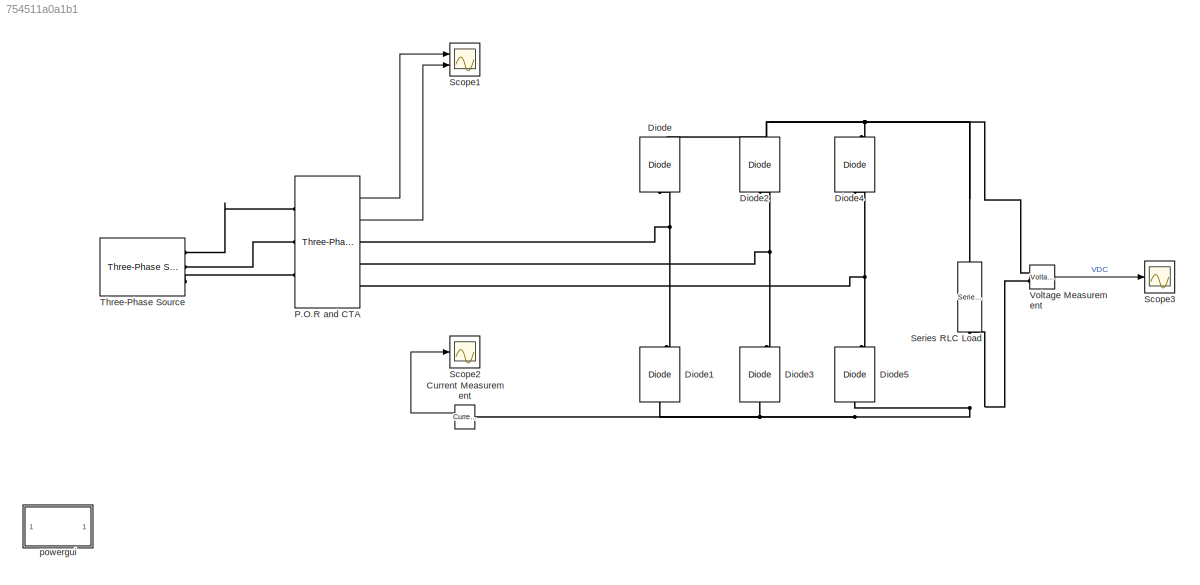
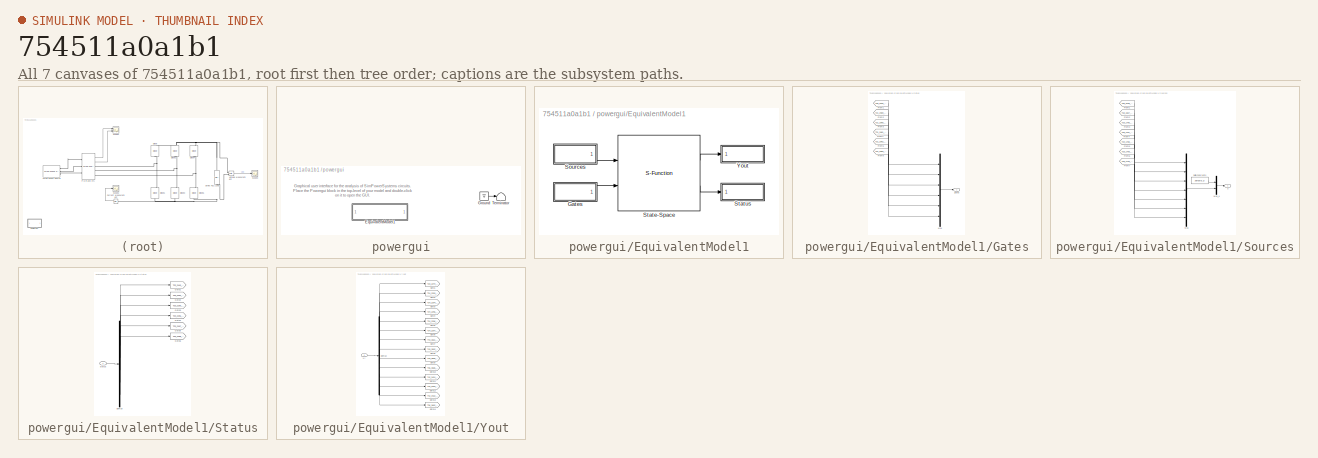
[diagram: thumbnail index - all 7 canvases of the model, root first then tree order]
MODEL slx_754511a0a1b1
KIND model
BLOCK [Reference] Current Measurement  REF=powerlib/Measurements/Current Measurement
  OutputType = Complex
  PSBequivalent = 0
  PhasorSimulation = off
  Ports = [0, 1, 0, 0, 0, 1, 1]
  SourceBlock = powerlib/Measurements/Current Measurement
  SourceType = Current Measurement
  UserDataPersistent = on
BLOCK [Reference] Diode  REF=powerlib/Power
Electronics/Diode
  Cs = 250e-9
  IC = 0
  Lon = 0
  Measurements = on
  Ports = [0, 1, 0, 0, 0, 1, 1]
  Ron = 0.001
  Rs = 500
  SourceBlock = powerlib/Power\nElectronics/Diode
  SourceType = Diode
  UseSnubber = off
  Vf = 0.8
BLOCK [Reference] Diode1  REF=powerlib/Power
Electronics/Diode
  Cs = 250e-9
  IC = 0
  Lon = 0
  Measurements = on
  Ports = [0, 1, 0, 0, 0, 1, 1]
  Ron = 0.001
  Rs = 500
  SourceBlock = powerlib/Power\nElectronics/Diode
  SourceType = Diode
  UseSnubber = off
  Vf = 0.8
BLOCK [Reference] Diode2  REF=powerlib/Power
Electronics/Diode
  Cs = 250e-9
  IC = 0
  Lon = 0
  Measurements = on
  Ports = [0, 1, 0, 0, 0, 1, 1]
  Ron = 0.001
  Rs = 500
  SourceBlock = powerlib/Power\nElectronics/Diode
  SourceType = Diode
  UseSnubber = off
  Vf = 0.8
BLOCK [Reference] Diode3  REF=powerlib/Power
Electronics/Diode
  Cs = 250e-9
  IC = 0
  Lon = 0
  Measurements = on
  Ports = [0, 1, 0, 0, 0, 1, 1]
  Ron = 0.001
  Rs = 500
  SourceBlock = powerlib/Power\nElectronics/Diode
  SourceType = Diode
  UseSnubber = off
  Vf = 0.8
BLOCK [Reference] Diode4  REF=powerlib/Power
Electronics/Diode
  Cs = 250e-9
  IC = 0
  Lon = 0
  Measurements = on
  Ports = [0, 1, 0, 0, 0, 1, 1]
  Ron = 0.001
  Rs = 500
  SourceBlock = powerlib/Power\nElectronics/Diode
  SourceType = Diode
  UseSnubber = off
  Vf = 0.8
BLOCK [Reference] Diode5  REF=powerlib/Power
Electronics/Diode
  Cs = 250e-9
  IC = 0
  Lon = 0
  Measurements = on
  Ports = [0, 1, 0, 0, 0, 1, 1]
  Ron = 0.001
  Rs = 500
  SourceBlock = powerlib/Power\nElectronics/Diode
  SourceType = Diode
  UseSnubber = off
  Vf = 0.8
BLOCK [Reference] P.O.R  and CTA  REF=powerlib/Measurements/Three-Phase
V-I Measurement
  CurrentMeasurement = yes
  Ipu = off
  LabelI = Iabc
  LabelV = Vabc
  OutputType = Complex
  PSBequivalent = 0
  Pbase = 100e6
  PhasorSimulation = off
  Ports = [0, 2, 0, 0, 0, 3, 3]
  SetLabelI = off
  SetLabelV = off
  SourceBlock = powerlib/Measurements/Three-Phase\nV-I Measurement
  SourceType = Three-Phase VI Measurement
  Vbase = 500e3
  VoltageMeasurement = phase-to-phase
  Vpu = off
  VpuLL = off
BLOCK [Scope] Scope1
  DataFormat = StructureWithTime
  Decimation = 100
  Floating = off
  LimitDataPoints = off
  NumInputPorts = 2
  Ports = [2]
  SampleTime = 1e-3
  ShowLegends = off
  TimeRange = 0.005
  YMax = 200~5
  YMin = -200~-5
  ZoomMode = xonly
BLOCK [Scope] Scope2
  DataFormat = StructureWithTime
  Decimation = 100
  Floating = off
  LimitDataPoints = off
  NumInputPorts = 1
  Ports = [1]
  SampleTime = 1e-3
  SaveName = ScopeData1
  ShowLegends = off
  TimeRange = 0.005
  YMax = 200
  YMin = -200
  ZoomMode = xonly
BLOCK [Scope] Scope3
  DataFormat = StructureWithTime
  Decimation = 100
  Floating = off
  LimitDataPoints = off
  NumInputPorts = 1
  Ports = [1]
  SampleTime = 1e-3
  SaveName = ScopeData2
  ShowLegends = off
  TimeRange = 0.005
  YMax = 200
  YMin = -200
  ZoomMode = xonly
BLOCK [Reference] Series RLC Load  REF=powerlib/Elements/Series RLC Load
  ActivePower = 200
  AttributesFormatString = \n
  CapacitivePower = 0
  InductivePower = 100
  InitialCurrent = 0
  InitialVoltage = 0
  LConnTagsString = a
  Measurements = None
  NominalFrequency = 400
  NominalVoltage = 280
  Ports = [0, 0, 0, 0, 0, 1, 1]
  RConnTagsString = __new0
  SetiL0 = off
  Setx0 = off
  SourceBlock = powerlib/Elements/Series RLC Load
  SourceType = Series RLC Load
BLOCK [Reference] Three-Phase Source  REF=powerlib/Electrical
Sources/Three-Phase Source
  BaseVoltage = 25e3
  BusType = swing
  Frequency = 400
  Inductance = 16.58e-3*1e-6
  InternalConnection = Yn
  PhaseAngle = 0
  Ports = [0, 0, 0, 0, 0, 1, 3]
  Pref = 0
  Qmax = inf
  Qmin = -inf
  Qref = 0
  Resistance = 0.8929e-6
  ShortCircuitLevel = 100e6
  SourceBlock = powerlib/Electrical\nSources/Three-Phase Source
  SourceType = Three-Phase Source
  SpecifyImpedance = off
  Voltage = 115*sqrt(3)
  XRratio = 7
BLOCK [Reference] Voltage Measurement  REF=powerlib/Measurements/Voltage Measurement
  OutputType = Complex
  PSBequivalent = 0
  PhasorSimulation = off
  Ports = [0, 1, 0, 0, 0, 2]
  SourceBlock = powerlib/Measurements/Voltage Measurement
  SourceType = Voltage Measurement
  UserDataPersistent = on
BLOCK [SubSystem] powergui
  AncestorBlock = powerlib/powergui
  CopyFcn = powergui( 'Copy_Callback' , gcb , 0 , [ ] );
  DeleteFcn = % see geck 675031 powergui( 'Copy_Callback' , gcb , 1 , [ ] );\n                                                              \npowergui( 'CloseButton_Callback' , gcb , [ ] , [ ] );
  InitFcn = powergui( 'InitFcn_Callback' , gcb , 0 , [ ] );
  ModelCloseFcn = powergui( 'CloseButton_Callback' , gcb , [ ] , [ ] );
  NameChangeFcn = powergui( 'NameChangeFcn_Callback' , gcb , 0 , [ ] );
  OpenFcn = powergui(gcb,'Open')
  Ports = []
  PreSaveFcn = powergui( 'PreSaveFcn_Callback' , gcb , [ ] , [ ] ); \npowergui( 'CloseButton_Callback' , gcb , [ ] , [ ] );
  Priority = 1
  RequestExecContextInheritance = off
  StopFcn = powergui( 'StopFcn_Callback' , gcb , 0 , [ ] );
  UserDataPersistent = on
BLOCK [SubSystem] powergui/EquivalentModel1
  Ports = []
  RequestExecContextInheritance = off
BLOCK [SubSystem] powergui/EquivalentModel1/Gates
  Ports = [0, 1]
  RequestExecContextInheritance = off
BLOCK [From] powergui/EquivalentModel1/Gates/From1
  GotoTag = T20_1910_703926099579
  TagVisibility = global
BLOCK [From] powergui/EquivalentModel1/Gates/From2
  GotoTag = T21_1959_742587222476
  TagVisibility = global
BLOCK [From] powergui/EquivalentModel1/Gates/From3
  GotoTag = T21_1960_742092079143
  TagVisibility = global
BLOCK [From] powergui/EquivalentModel1/Gates/From4
  GotoTag = T21_1961_741636959619
  TagVisibility = global
BLOCK [From] powergui/EquivalentModel1/Gates/From5
  GotoTag = T21_1962_741221863905
  TagVisibility = global
BLOCK [From] powergui/EquivalentModel1/Gates/From6
  GotoTag = T21_1963_740846792000
  TagVisibility = global
BLOCK [Mux] powergui/EquivalentModel1/Gates/Mux
  DisplayOption = bar
  Inputs = [1 1 1 1 1 1]
  Ports = [6, 1]
BLOCK [Outport] powergui/EquivalentModel1/Gates/gates
  IconDisplay = Port number
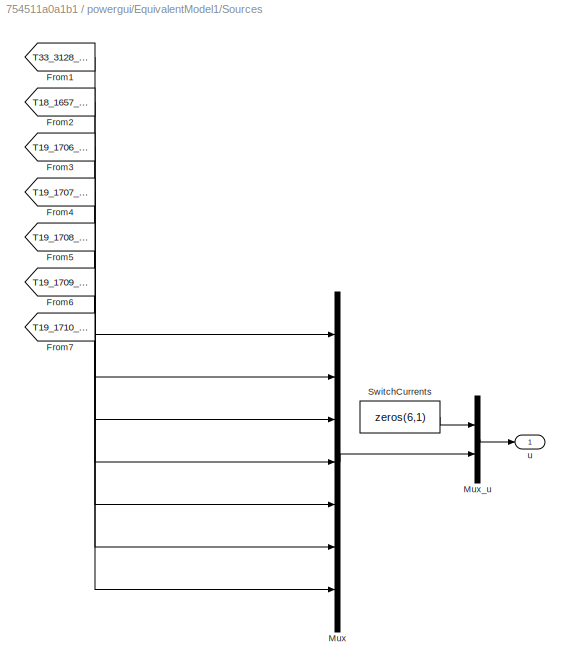
BLOCK [SubSystem] powergui/EquivalentModel1/Sources
  Ports = [0, 1]
  RequestExecContextInheritance = off
BLOCK [From] powergui/EquivalentModel1/Sources/From1
  GotoTag = T33_3128_1903778631553
  TagVisibility = global
BLOCK [From] powergui/EquivalentModel1/Sources/From2
  GotoTag = T18_1657_359918507712
  TagVisibility = global
BLOCK [From] powergui/EquivalentModel1/Sources/From3
  GotoTag = T19_1706_357229576491
  TagVisibility = global
BLOCK [From] powergui/EquivalentModel1/Sources/From4
  GotoTag = T19_1707_357173279415
  TagVisibility = global
BLOCK [From] powergui/EquivalentModel1/Sources/From5
  GotoTag = T19_1708_357161219181
  TagVisibility = global
BLOCK [From] powergui/EquivalentModel1/Sources/From6
  GotoTag = T19_1709_357193395789
  TagVisibility = global
BLOCK [From] powergui/EquivalentModel1/Sources/From7
  GotoTag = T19_1710_357269809240
  TagVisibility = global
BLOCK [Mux] powergui/EquivalentModel1/Sources/Mux
  DisplayOption = bar
  Inputs = [3 1 1 1 1 1 1]
  Ports = [7, 1]
BLOCK [Mux] powergui/EquivalentModel1/Sources/Mux_u
  DisplayOption = bar
  Inputs = [6 9]
  Ports = [2, 1]
BLOCK [Constant] powergui/EquivalentModel1/Sources/SwitchCurrents
  Value = zeros(6,1)
BLOCK [Outport] powergui/EquivalentModel1/Sources/u
  IconDisplay = Port number
BLOCK [S-Function] powergui/EquivalentModel1/State-Space
  EnableBusSupport = off
  FunctionName = sfun_spssw_discc
  Parameters = S.Ts,S.A, S.B, S.C, S.D, S.x0, S.EnableUseOfTLC,S.SwitchResistance ,S.SwitchType, S.SwitchGateInitialValue, S.OutputsToResetToZero, S.TBEON
  Ports = [2, 2]
BLOCK [SubSystem] powergui/EquivalentModel1/Status
  Ports = [1]
  RequestExecContextInheritance = off
BLOCK [Demux] powergui/EquivalentModel1/Status/Demux
  DisplayOption = bar
  Outputs = [1 1 1 1 1 1]
  Ports = [1, 6]
BLOCK [Goto] powergui/EquivalentModel1/Status/Goto1
  GotoTag = T22_2145_958390303485
  TagVisibility = global
BLOCK [Goto] powergui/EquivalentModel1/Status/Goto2
  GotoTag = T23_2194_1027576035336
  TagVisibility = global
BLOCK [Goto] powergui/EquivalentModel1/Status/Goto3
  GotoTag = T23_2195_1026781664387
  TagVisibility = global
BLOCK [Goto] powergui/EquivalentModel1/Status/Goto4
  GotoTag = T23_2196_1026023836917
  TagVisibility = global
BLOCK [Goto] powergui/EquivalentModel1/Status/Goto5
  GotoTag = T23_2197_1025302552925
  TagVisibility = global
BLOCK [Goto] powergui/EquivalentModel1/Status/Goto6
  GotoTag = T23_2198_1024617812411
  TagVisibility = global
BLOCK [Inport] powergui/EquivalentModel1/Status/status
  IconDisplay = Port number
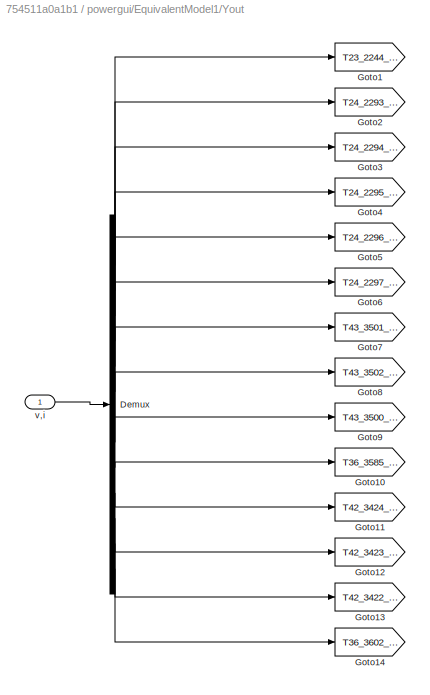
BLOCK [SubSystem] powergui/EquivalentModel1/Yout
  Ports = [1]
  RequestExecContextInheritance = off
BLOCK [Demux] powergui/EquivalentModel1/Yout/Demux
  DisplayOption = bar
  Outputs = [1 1 1 1 1 1 1 1 1 1 1 1 1 1]
  Ports = [1, 14]
BLOCK [Goto] powergui/EquivalentModel1/Yout/Goto1
  GotoTag = T23_2244_987114834387
  TagVisibility = global
BLOCK [Goto] powergui/EquivalentModel1/Yout/Goto10
  GotoTag = T36_3585_2437215618571
  TagVisibility = global
BLOCK [Goto] powergui/EquivalentModel1/Yout/Goto11
  GotoTag = T42_3424_3044675371132
  TagVisibility = global
BLOCK [Goto] powergui/EquivalentModel1/Yout/Goto12
  GotoTag = T42_3423_3043211601858
  TagVisibility = global
BLOCK [Goto] powergui/EquivalentModel1/Yout/Goto13
  GotoTag = T42_3422_3041839604489
  TagVisibility = global
BLOCK [Goto] powergui/EquivalentModel1/Yout/Goto14
  GotoTag = T36_3602_2447152651516
  TagVisibility = global
BLOCK [Goto] powergui/EquivalentModel1/Yout/Goto2
  GotoTag = T24_2293_1064363519058
  TagVisibility = global
BLOCK [Goto] powergui/EquivalentModel1/Yout/Goto3
  GotoTag = T24_2294_1063487749402
  TagVisibility = global
BLOCK [Goto] powergui/EquivalentModel1/Yout/Goto4
  GotoTag = T24_2295_1062647000580
  TagVisibility = global
BLOCK [Goto] powergui/EquivalentModel1/Yout/Goto5
  GotoTag = T24_2296_1061841272591
  TagVisibility = global
BLOCK [Goto] powergui/EquivalentModel1/Yout/Goto6
  GotoTag = T24_2297_1061070565435
  TagVisibility = global
BLOCK [Goto] powergui/EquivalentModel1/Yout/Goto7
  GotoTag = T43_3501_3146221200443
  TagVisibility = global
BLOCK [Goto] powergui/EquivalentModel1/Yout/Goto8
  GotoTag = T43_3502_3147894586899
  TagVisibility = global
BLOCK [Goto] powergui/EquivalentModel1/Yout/Goto9
  GotoTag = T43_3500_3145118424806
  TagVisibility = global
BLOCK [Inport] powergui/EquivalentModel1/Yout/v,i
  IconDisplay = Port number
BLOCK [Ground] powergui/Ground
BLOCK [Terminator] powergui/Terminator
ANNOTATION powergui: Graphical user interface for the analysis of SimPowerSystems circuits. Place the Powergui block in the top-level of your model and double-click on it to open the GUI.
LINE Current Measurement:1 -> Scope2:1
LINE P.O.R  and CTA:1 -> Scope1:1
LINE P.O.R  and CTA:2 -> Scope1:2
LINE Voltage Measurement:1 -> Scope3:1
PNET net1: Current Measurement:LConn1 -- Diode1:LConn1 -- Diode3:LConn1 -- Diode5:LConn1 -- Series RLC Load:RConn1 -- Voltage Measurement:LConn2
PNET net2: Diode1:RConn1 -- Diode:LConn1 -- P.O.R  and CTA:RConn1
PNET net3: Diode2:LConn1 -- Diode3:RConn1 -- P.O.R  and CTA:RConn2
PNET net4: Diode2:RConn1 -- Diode4:RConn1 -- Diode:RConn1 -- Series RLC Load:LConn1 -- Voltage Measurement:LConn1
PNET net5: Diode4:LConn1 -- Diode5:RConn1 -- P.O.R  and CTA:RConn3
PLINE P.O.R  and CTA:LConn1 -- Three-Phase Source:RConn1
PLINE P.O.R  and CTA:LConn2 -- Three-Phase Source:RConn2
PLINE P.O.R  and CTA:LConn3 -- Three-Phase Source:RConn3
note: PNET lines group multi-terminal physical nets as a canonical sorted terminal list (undirected conserving connections); 2-terminal nets keep the pairwise PLINE form
